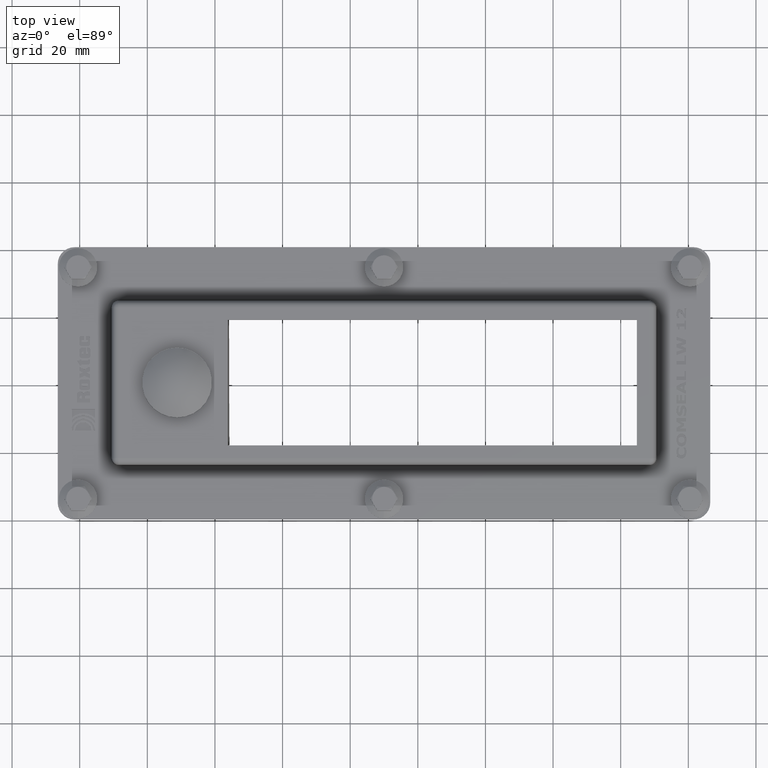
[diagram: clean part render]
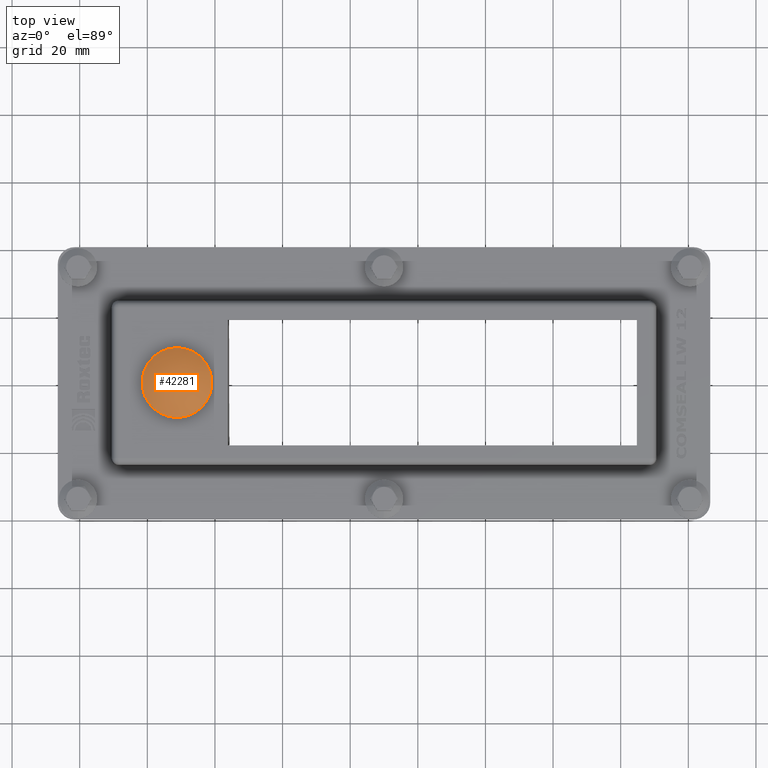
[diagram: same view with one face highlighted and labeled with its STEP entity id]
A machine part, top view. The second image highlights one B-rep face of the part: STEP entity #42281.
In plain terms, the highlighted spherical surface has radius 16 mm.
Its self-contained STEP definition (entity closure, byte-faithful):
#42265=CARTESIAN_POINT('',(11.120000000000005,0.0,0.0));
#42266=DIRECTION('',(0.0,0.0,1.0));
#42267=DIRECTION('',(1.0,0.0,0.0));
#42268=AXIS2_PLACEMENT_3D('',#42265,#42266,#42267);
#42269=SPHERICAL_SURFACE('',#42268,16.000000000000004);
#42270=CARTESIAN_POINT('',(-1.102699169986955,10.325000000000003,0.0));
#42271=VERTEX_POINT('',#42270);
#42272=CARTESIAN_POINT('',(-1.102699169986954,-2.714552E-032,0.0));
#42273=DIRECTION('',(1.0,0.0,0.0));
#42274=DIRECTION('',(0.0,1.0,0.0));
#42275=AXIS2_PLACEMENT_3D('',#42272,#42273,#42274);
#42276=CIRCLE('',#42275,10.325000000000003);
#42277=EDGE_CURVE('',#42271,#42271,#42276,.T.);
#42278=ORIENTED_EDGE('',*,*,#42277,.F.);
#42279=EDGE_LOOP('',(#42278));
#42280=FACE_OUTER_BOUND('',#42279,.T.);
#42281=ADVANCED_FACE('',(#42280),#42269,.T.);